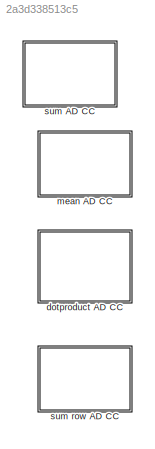
MODEL slx_2a3d338513c5
KIND library
CONFIG AbsTol = auto
CONFIG EnableMultiTasking = off
CONFIG FixedStep = auto
CONFIG MaxStep = auto
CONFIG MinStep = auto
CONFIG RelTol = 1e-3
CONFIG SampleTimeConstraint = Unconstrained
CONFIG Solver = VariableStepAuto
CONFIG SolverName = VariableStepAuto
CONFIG StartTime = 0.0
CONFIG StopTime = 10.0
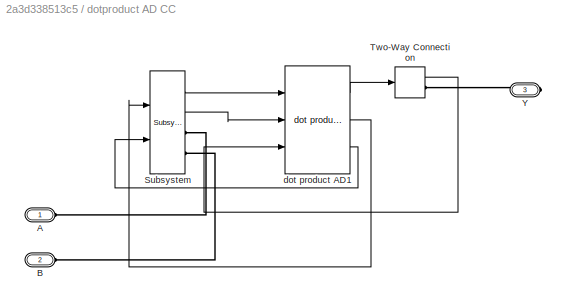
BLOCK [SubSystem] dotproduct AD CC
  Ports = [0, 0, 0, 0, 0, 2, 1]
  RequestExecContextInheritance = off
  Variant = off
BLOCK [PMIOPort] dotproduct AD CC/A
  Port = 1
  Side = Left
BLOCK [PMIOPort] dotproduct AD CC/B
  Port = 2
  Side = Left
BLOCK [Reference] dotproduct AD CC/Subsystem  REF=autodiff/Plus AD CC/Subsystem  (lib defined in slx_73a817ef6e8b)
  Ports = [2, 2, 0, 0, 0, 0, 2]
  SourceBlock = autodiff/Plus AD CC/Subsystem
  SourceProductName = AutoDiff
  SourceType = SubSystem
BLOCK [TwoWayConnection] dotproduct AD CC/Two-Way Connection
  Ports = [1, 1, 0, 0, 0, 0, 1]
BLOCK [PMIOPort] dotproduct AD CC/Y
  Port = 3
  Side = Right
BLOCK [Reference] dotproduct AD CC/dot product AD1  REF=autodiff/dot product AD  (lib defined in slx_73a817ef6e8b)
  Ports = [3, 3]
  SourceBlock = autodiff/dot product AD
  SourceProductName = AutoDiff
  SourceType = SubSystem
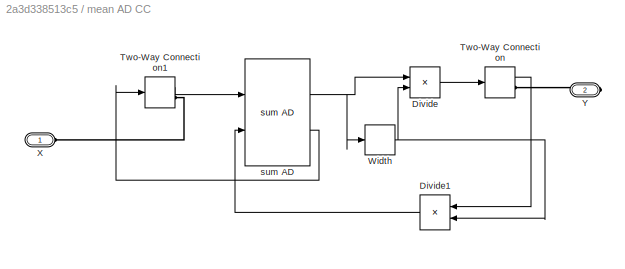
BLOCK [SubSystem] mean AD CC
  Ports = [0, 0, 0, 0, 0, 1, 1]
  RequestExecContextInheritance = off
  Variant = off
BLOCK [Product] mean AD CC/Divide
  InputSameDT = off
  Inputs = */
  OutDataTypeStr = Inherit: Inherit via internal rule
  Ports = [2, 1]
  RndMeth = Floor
  SaturateOnIntegerOverflow = off
BLOCK [Product] mean AD CC/Divide1
  InputSameDT = off
  Inputs = */
  OutDataTypeStr = Inherit: Inherit via internal rule
  Ports = [2, 1]
  RndMeth = Floor
  SaturateOnIntegerOverflow = off
BLOCK [TwoWayConnection] mean AD CC/Two-Way Connection
  Ports = [1, 1, 0, 0, 0, 0, 1]
BLOCK [TwoWayConnection] mean AD CC/Two-Way Connection1
  Ports = [1, 1, 0, 0, 0, 0, 1]
BLOCK [Width] mean AD CC/Width
BLOCK [PMIOPort] mean AD CC/X
  Port = 1
  Side = Left
BLOCK [PMIOPort] mean AD CC/Y
  Port = 2
  Side = Right
BLOCK [Reference] mean AD CC/sum AD  REF=autodiff/sum AD  (lib defined in slx_73a817ef6e8b)
  Ports = [2, 2]
  SourceBlock = autodiff/sum AD
  SourceProductName = AutoDiff
  SourceType = SubSystem
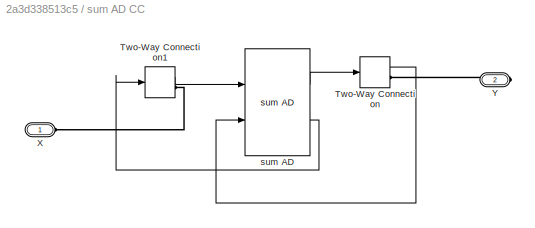
BLOCK [SubSystem] sum AD CC
  Ports = [0, 0, 0, 0, 0, 1, 1]
  RequestExecContextInheritance = off
  Variant = off
BLOCK [TwoWayConnection] sum AD CC/Two-Way Connection
  Ports = [1, 1, 0, 0, 0, 0, 1]
BLOCK [TwoWayConnection] sum AD CC/Two-Way Connection1
  Ports = [1, 1, 0, 0, 0, 0, 1]
BLOCK [PMIOPort] sum AD CC/X
  Port = 1
  Side = Left
BLOCK [PMIOPort] sum AD CC/Y
  Port = 2
  Side = Right
BLOCK [Reference] sum AD CC/sum AD  REF=autodiff/sum AD  (lib defined in slx_73a817ef6e8b)
  Ports = [2, 2]
  SourceBlock = autodiff/sum AD
  SourceProductName = AutoDiff
  SourceType = SubSystem
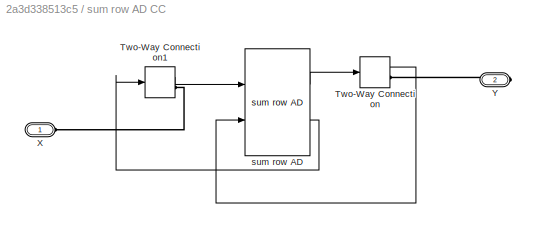
BLOCK [SubSystem] sum row AD CC
  Ports = [0, 0, 0, 0, 0, 1, 1]
  RequestExecContextInheritance = off
  Variant = off
BLOCK [TwoWayConnection] sum row AD CC/Two-Way Connection
  Ports = [1, 1, 0, 0, 0, 0, 1]
BLOCK [TwoWayConnection] sum row AD CC/Two-Way Connection1
  Ports = [1, 1, 0, 0, 0, 0, 1]
BLOCK [PMIOPort] sum row AD CC/X
  Port = 1
  Side = Left
BLOCK [PMIOPort] sum row AD CC/Y
  Port = 2
  Side = Right
BLOCK [Reference] sum row AD CC/sum row AD  REF=autodiff/sum row AD  (lib defined in slx_73a817ef6e8b)
  Ports = [2, 2]
  SourceBlock = autodiff/sum row AD
  SourceProductName = AutoDiff
  SourceType = SubSystem
LINE dotproduct AD CC/Subsystem:1 -> dotproduct AD CC/dot product AD1:1
LINE dotproduct AD CC/Subsystem:2 -> dotproduct AD CC/dot product AD1:2
LINE dotproduct AD CC/Two-Way Connection:1 -> dotproduct AD CC/dot product AD1:3
LINE dotproduct AD CC/dot product AD1:1 -> dotproduct AD CC/Two-Way Connection:1
LINE dotproduct AD CC/dot product AD1:2 -> dotproduct AD CC/Subsystem:1
LINE dotproduct AD CC/dot product AD1:3 -> dotproduct AD CC/Subsystem:2
LINE mean AD CC/Divide1:1 -> mean AD CC/sum AD:2
LINE mean AD CC/Divide:1 -> mean AD CC/Two-Way Connection:1
LINE mean AD CC/Two-Way Connection1:1 -> mean AD CC/sum AD:1
LINE mean AD CC/Two-Way Connection:1 -> mean AD CC/Divide1:1
NET mean AD CC/Width:1 -> mean AD CC/Divide1:2, mean AD CC/Divide:2
NET mean AD CC/sum AD:1 -> mean AD CC/Divide:1, mean AD CC/Width:1
LINE mean AD CC/sum AD:2 -> mean AD CC/Two-Way Connection1:1
LINE sum AD CC/Two-Way Connection1:1 -> sum AD CC/sum AD:1
LINE sum AD CC/Two-Way Connection:1 -> sum AD CC/sum AD:2
LINE sum AD CC/sum AD:1 -> sum AD CC/Two-Way Connection:1
LINE sum AD CC/sum AD:2 -> sum AD CC/Two-Way Connection1:1
LINE sum row AD CC/Two-Way Connection1:1 -> sum row AD CC/sum row AD:1
LINE sum row AD CC/Two-Way Connection:1 -> sum row AD CC/sum row AD:2
LINE sum row AD CC/sum row AD:1 -> sum row AD CC/Two-Way Connection:1
LINE sum row AD CC/sum row AD:2 -> sum row AD CC/Two-Way Connection1:1
PLINE dotproduct AD CC/A:RConn1 -- dotproduct AD CC/Subsystem:RConn1
PLINE dotproduct AD CC/B:RConn1 -- dotproduct AD CC/Subsystem:RConn2
PLINE dotproduct AD CC/Two-Way Connection:RConn1 -- dotproduct AD CC/Y:RConn1
PLINE mean AD CC/Two-Way Connection1:RConn1 -- mean AD CC/X:RConn1
PLINE mean AD CC/Two-Way Connection:RConn1 -- mean AD CC/Y:RConn1
PLINE sum AD CC/Two-Way Connection1:RConn1 -- sum AD CC/X:RConn1
PLINE sum AD CC/Two-Way Connection:RConn1 -- sum AD CC/Y:RConn1
PLINE sum row AD CC/Two-Way Connection1:RConn1 -- sum row AD CC/X:RConn1
PLINE sum row AD CC/Two-Way Connection:RConn1 -- sum row AD CC/Y:RConn1
note: NET lines group one-source signal fan-out (src -> all destinations, sorted); 1:1 wires keep LINE
